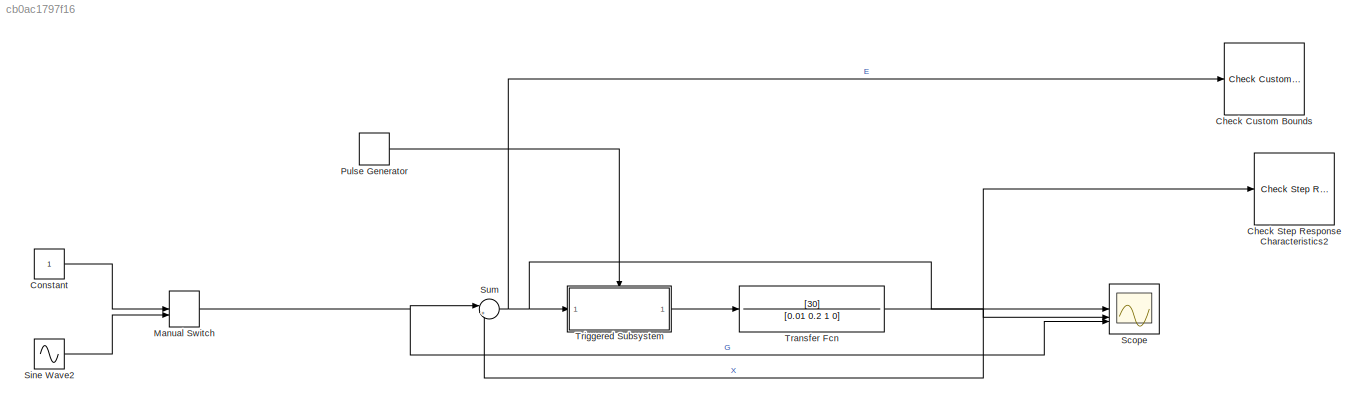
MODEL slx_cb0ac1797f16
KIND model
CONFIG AbsTol = auto
CONFIG EnableMultiTasking = off
CONFIG FixedStep = auto
CONFIG MaxStep = auto
CONFIG MinStep = auto
CONFIG RelTol = 1e-3
CONFIG SampleTimeConstraint = Unconstrained
CONFIG SolverName = VariableStepAuto
CONFIG StartTime = 0.0
CONFIG StopTime = 10.0
BLOCK [Reference] Check Custom Bounds  REF=checkpacklib/Check Custom Bounds
  Commented = on
  InstantiateOnLoad = on
  LibrarySourceBlock = sdolib/Model Verification/Check Custom Bounds
  SourceBlock = checkpacklib/Check Custom Bounds
  SourceType = Checks_CustomBounds
BLOCK [Reference] Check Step Response Characteristics2  REF=checkpacklib/Check Step Response 
Characteristics
  Commented = on
  InstantiateOnLoad = on
  LibrarySourceBlock = sdolib/Model Verification/Check Step Response \nCharacteristics
  SourceBlock = checkpacklib/Check Step Response \nCharacteristics
  SourceType = Checks_StepResponse
BLOCK [Constant] Constant
BLOCK [ManualSwitch] Manual Switch
BLOCK [DiscretePulseGenerator] Pulse Generator
  Period = 0.005
  PulseType = Time based
  PulseWidth = 5
BLOCK [Scope] Scope
  Floating = off
  NumInputPorts = 3
  ScopeSpecificationString = Simulink.scopes.TimeScopeBlockCfg('CurrentConfiguration', extmgr.ConfigurationSet(extmgr.Configuration('Core','General UI',true,'FigureColor',[1 1 1]),extmgr.Configuration('Core','Source UI',true),extmgr.Configuration('Sources','WiredSimulink',true),extmgr.Configuration('Visuals','Time Domain',true,'SerializedDisplays',{struct('MinYLimReal','-0.89585','MaxYLimReal','1.21065','YLabelReal','','MinYL...<+3142ch>
BLOCK [Sin] Sine Wave2
  Amplitude = 50
  Frequency = 0.5
  SampleTime = 0
BLOCK [Sum] Sum
  Inputs = |+-
BLOCK [TransferFcn] Transfer Fcn
  Denominator = [0.01 0.2 1 0]
  Numerator = [30]
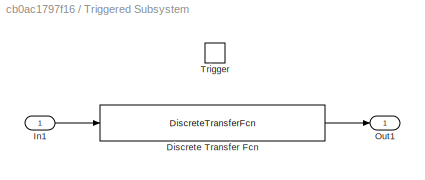
BLOCK [SubSystem] Triggered Subsystem
  TreatAsAtomicUnit = on
BLOCK [DiscreteTransferFcn] Triggered Subsystem/Discrete Transfer Fcn
  Denominator = [1 -0.03922 -0.9608]
  InputPortMap = u0
  Numerator = [15.91 -30.89 15]
BLOCK [Inport] Triggered Subsystem/In1
BLOCK [Outport] Triggered Subsystem/Out1
BLOCK [TriggerPort] Triggered Subsystem/Trigger
  StatesWhenEnabling = held
  VariantControl = (inherit)
LINE Constant:1 -> Manual Switch:1
NET Manual Switch:1 -> Scope:3, Sum:1
LINE Pulse Generator:1 -> Triggered Subsystem:trigger
LINE Sine Wave2:1 -> Manual Switch:2
NET Sum:1 -> Check Custom Bounds:1, Scope:1, Triggered Subsystem:1
NET Transfer Fcn:1 -> Check Step Response Characteristics2:1, Scope:2, Sum:2
LINE Triggered Subsystem/Discrete Transfer Fcn:1 -> Triggered Subsystem/Out1:1
LINE Triggered Subsystem/In1:1 -> Triggered Subsystem/Discrete Transfer Fcn:1
LINE Triggered Subsystem:1 -> Transfer Fcn:1
note: NET lines group one-source signal fan-out (src -> all destinations, sorted); 1:1 wires keep LINE
